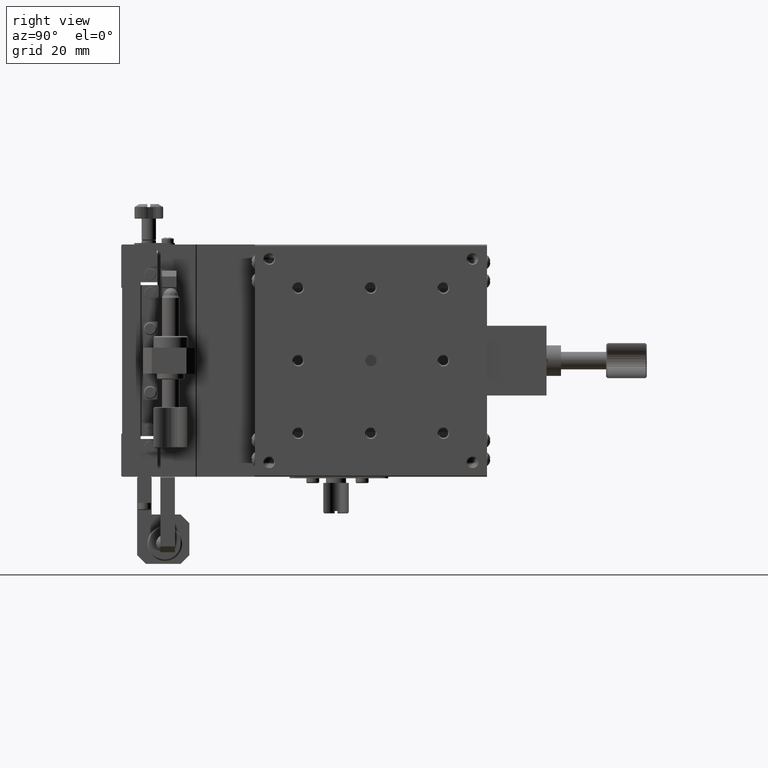
[diagram: clean part render]
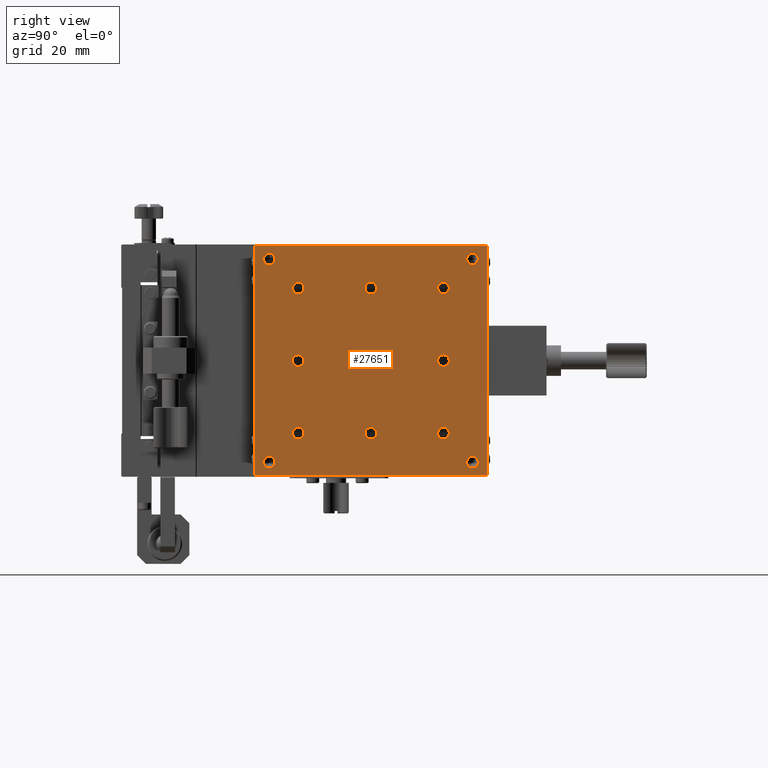
[diagram: same view with one face highlighted and labeled with its STEP entity id]
A machine part, right view. The second image highlights one B-rep face of the part: STEP entity #27651.
In plain terms, the highlighted planar face has unit normal (-1, 0, 0).
Its self-contained STEP definition (entity closure, byte-faithful):
#225 = EDGE_LOOP ( 'NONE', ( #36025 ) ) ;
#1324 = CIRCLE ( 'NONE', #62525, 2.000000000009549694 ) ;
#2165 = CIRCLE ( 'NONE', #71014, 2.000000000009549694 ) ;
#2223 = AXIS2_PLACEMENT_3D ( 'NONE', #49641, #72433, #42084 ) ;
#2775 = DIRECTION ( 'NONE',  ( 1.000000000000000000, 0.000000000000000000, 0.000000000000000000 ) ) ;
#3126 = CARTESIAN_POINT ( 'NONE',  ( 19.99999999984765964, 85.00000000000000000, -40.00000000000000000 ) ) ;
#3261 = VERTEX_POINT ( 'NONE', #27636 ) ;
#3283 = VECTOR ( 'NONE', #54221, 1000.000000000000000 ) ;
#4840 = DIRECTION ( 'NONE',  ( 1.000000000000000000, 0.000000000000000000, 0.000000000000000000 ) ) ;
#5115 = VERTEX_POINT ( 'NONE', #29509 ) ;
#5540 = ORIENTED_EDGE ( 'NONE', *, *, #47074, .F. ) ;
#5664 = CARTESIAN_POINT ( 'NONE',  ( 20.00000000000000000, 100.0000000000000000, -0.4099999999999999756 ) ) ;
#5691 = ORIENTED_EDGE ( 'NONE', *, *, #10397, .F. ) ;
#6114 = FACE_BOUND ( 'NONE', #28402, .T. ) ;
#7044 = EDGE_LOOP ( 'NONE', ( #56165 ) ) ;
#7544 = EDGE_CURVE ( 'NONE', #61989, #61989, #67345, .T. ) ;
#7574 = CARTESIAN_POINT ( 'NONE',  ( 19.99999999984765964, 85.00000000000000000, -41.99999999995270628 ) ) ;
#7583 = LINE ( 'NONE', #50333, #18460 ) ;
#7646 = EDGE_LOOP ( 'NONE', ( #11652 ) ) ;
#7855 = DIRECTION ( 'NONE',  ( 0.000000000000000000, 0.000000000000000000, -1.000000000000000000 ) ) ;
#8011 = EDGE_LOOP ( 'NONE', ( #75599 ) ) ;
#8016 = ORIENTED_EDGE ( 'NONE', *, *, #57070, .F. ) ;
#9110 = DIRECTION ( 'NONE',  ( 1.000000000000000000, 0.000000000000000000, 0.000000000000000000 ) ) ;
#9568 = CARTESIAN_POINT ( 'NONE',  ( 19.99999999998408740, 35.00000000000000000, -65.00000000000000000 ) ) ;
#10041 = VERTEX_POINT ( 'NONE', #65528 ) ;
#10207 = AXIS2_PLACEMENT_3D ( 'NONE', #60944, #24213, #66135 ) ;
#10397 = EDGE_CURVE ( 'NONE', #15645, #15645, #44657, .T. ) ;
#10709 = EDGE_CURVE ( 'NONE', #3261, #3261, #1324, .T. ) ;
#11470 = ORIENTED_EDGE ( 'NONE', *, *, #16513, .F. ) ;
#11652 = ORIENTED_EDGE ( 'NONE', *, *, #43027, .F. ) ;
#12012 = VERTEX_POINT ( 'NONE', #60722 ) ;
#12080 = EDGE_LOOP ( 'NONE', ( #17964 ) ) ;
#12127 = FACE_BOUND ( 'NONE', #62692, .T. ) ;
#12509 = FACE_BOUND ( 'NONE', #7044, .T. ) ;
#12940 = CIRCLE ( 'NONE', #57581, 2.000000000009549694 ) ;
#13631 = EDGE_LOOP ( 'NONE', ( #5691 ) ) ;
#15560 = CARTESIAN_POINT ( 'NONE',  ( 20.00000000005229595, 35.00000000000000000, -15.00000000000000000 ) ) ;
#15645 = VERTEX_POINT ( 'NONE', #38832 ) ;
#16484 = DIRECTION ( 'NONE',  ( 1.000000000000000000, 0.000000000000000000, 0.000000000000000000 ) ) ;
#16513 = EDGE_CURVE ( 'NONE', #43407, #26992, #7583, .T. ) ;
#17002 = CARTESIAN_POINT ( 'NONE',  ( 20.00000000000000000, 100.0000000000000000, -79.59000000000000341 ) ) ;
#17314 = CIRCLE ( 'NONE', #70899, 2.000000000000001776 ) ;
#17537 = EDGE_LOOP ( 'NONE', ( #63103 ) ) ;
#17949 = ORIENTED_EDGE ( 'NONE', *, *, #18343, .F. ) ;
#17964 = ORIENTED_EDGE ( 'NONE', *, *, #54553, .F. ) ;
#18111 = FACE_BOUND ( 'NONE', #225, .T. ) ;
#18343 = EDGE_CURVE ( 'NONE', #10041, #10041, #17314, .T. ) ;
#18460 = VECTOR ( 'NONE', #74692, 1000.000000000000000 ) ;
#19476 = CARTESIAN_POINT ( 'NONE',  ( 19.99999999999317524, 95.00000000000000000, -75.00000000000000000 ) ) ;
#20545 = CIRCLE ( 'NONE', #40955, 1.999999999952706276 ) ;
#21122 = DIRECTION ( 'NONE',  ( 0.000000000000000000, 0.000000000000000000, -1.000000000000000000 ) ) ;
#22299 = AXIS2_PLACEMENT_3D ( 'NONE', #19476, #31470, #37866 ) ;
#22302 = DIRECTION ( 'NONE',  ( 0.000000000000000000, 0.000000000000000000, -1.000000000000000000 ) ) ;
#24213 = DIRECTION ( 'NONE',  ( 1.000000000000000000, 0.000000000000000000, 0.000000000000000000 ) ) ;
#24632 = VECTOR ( 'NONE', #56500, 1000.000000000000000 ) ;
#24880 = CARTESIAN_POINT ( 'NONE',  ( 20.00000000005229595, 35.00000000000000000, -17.00000000006639311 ) ) ;
#24897 = FACE_BOUND ( 'NONE', #17537, .T. ) ;
#25289 = PLANE ( 'NONE',  #2223 ) ;
#25425 = AXIS2_PLACEMENT_3D ( 'NONE', #54630, #73772, #7855 ) ;
#25530 = EDGE_CURVE ( 'NONE', #12012, #12012, #77752, .T. ) ;
#25572 = CARTESIAN_POINT ( 'NONE',  ( 19.99999999998408740, 35.00000000000000000, -67.00000000000954969 ) ) ;
#26888 = EDGE_CURVE ( 'NONE', #30783, #30783, #2165, .T. ) ;
#26992 = VERTEX_POINT ( 'NONE', #64668 ) ;
#27279 = ORIENTED_EDGE ( 'NONE', *, *, #25530, .F. ) ;
#27400 = ORIENTED_EDGE ( 'NONE', *, *, #10709, .F. ) ;
#27636 = CARTESIAN_POINT ( 'NONE',  ( 19.99999999998408740, 60.00000000000000000, -67.00000000000954969 ) ) ;
#27651 = ADVANCED_FACE ( 'NONE', ( #6114, #36884, #48456, #67212, #12127, #72820, #73211, #61613, #12509, #48075, #18111, #62008, #24897, #43665 ), #25289, .F. ) ;
#27701 = CARTESIAN_POINT ( 'NONE',  ( 19.99999999998408740, 85.00000000000000000, -65.00000000000000000 ) ) ;
#28402 = EDGE_LOOP ( 'NONE', ( #17949 ) ) ;
#29509 = CARTESIAN_POINT ( 'NONE',  ( 19.99999999999317524, 95.00000000000000000, -77.00000000000954969 ) ) ;
#30783 = VERTEX_POINT ( 'NONE', #25572 ) ;
#31470 = DIRECTION ( 'NONE',  ( 1.000000000000000000, 0.000000000000000000, 0.000000000000000000 ) ) ;
#31967 = CARTESIAN_POINT ( 'NONE',  ( 19.99999999986812327, 25.00000000000000000, -7.000000000005002221 ) ) ;
#32763 = CARTESIAN_POINT ( 'NONE',  ( 20.00000000000000000, 60.00000000000000000, -40.00000000000000000 ) ) ;
#32822 = CARTESIAN_POINT ( 'NONE',  ( 20.00000000000000000, 100.0000000000000000, -0.4099999999999997535 ) ) ;
#32903 = EDGE_CURVE ( 'NONE', #37569, #37569, #39805, .T. ) ;
#32979 = DIRECTION ( 'NONE',  ( 0.000000000000000000, 0.000000000000000000, -1.000000000000000000 ) ) ;
#33162 = AXIS2_PLACEMENT_3D ( 'NONE', #36397, #4840, #73100 ) ;
#33541 = EDGE_CURVE ( 'NONE', #55130, #55130, #20545, .T. ) ;
#33646 = EDGE_CURVE ( 'NONE', #66699, #66699, #52402, .T. ) ;
#33858 = EDGE_LOOP ( 'NONE', ( #5540 ) ) ;
#34879 = DIRECTION ( 'NONE',  ( 0.000000000000000000, 0.000000000000000000, -1.000000000000000000 ) ) ;
#34888 = DIRECTION ( 'NONE',  ( 1.000000000000000000, 0.000000000000000000, 0.000000000000000000 ) ) ;
#36025 = ORIENTED_EDGE ( 'NONE', *, *, #32903, .F. ) ;
#36397 = CARTESIAN_POINT ( 'NONE',  ( 19.99999999987268140, 95.00000000000000000, -5.000000000000009770 ) ) ;
#36884 = FACE_BOUND ( 'NONE', #33858, .T. ) ;
#37019 = ORIENTED_EDGE ( 'NONE', *, *, #51890, .F. ) ;
#37569 = VERTEX_POINT ( 'NONE', #50324 ) ;
#37866 = DIRECTION ( 'NONE',  ( 0.000000000000000000, 0.000000000000000000, -1.000000000000000000 ) ) ;
#37970 = DIRECTION ( 'NONE',  ( 1.000000000000000000, 0.000000000000000000, 0.000000000000000000 ) ) ;
#38832 = CARTESIAN_POINT ( 'NONE',  ( 19.99999999984765964, 35.00000000000000000, -41.99999999995270628 ) ) ;
#39805 = CIRCLE ( 'NONE', #50008, 2.000000000009549694 ) ;
#39909 = VERTEX_POINT ( 'NONE', #64246 ) ;
#40148 = CARTESIAN_POINT ( 'NONE',  ( 19.99999999998408740, 60.00000000000000000, -65.00000000000000000 ) ) ;
#40242 = CARTESIAN_POINT ( 'NONE',  ( 19.99999999999317524, 25.00000000000000000, -75.00000000000000000 ) ) ;
#40955 = AXIS2_PLACEMENT_3D ( 'NONE', #3126, #9110, #21122 ) ;
#42084 = DIRECTION ( 'NONE',  ( 0.000000000000000000, 0.000000000000000000, 1.000000000000000000 ) ) ;
#42355 = VECTOR ( 'NONE', #60374, 1000.000000000000000 ) ;
#43027 = EDGE_CURVE ( 'NONE', #39909, #39909, #47073, .T. ) ;
#43143 = AXIS2_PLACEMENT_3D ( 'NONE', #15560, #2775, #52290 ) ;
#43407 = VERTEX_POINT ( 'NONE', #17002 ) ;
#43665 = FACE_OUTER_BOUND ( 'NONE', #66282, .T. ) ;
#44657 = CIRCLE ( 'NONE', #10207, 1.999999999952706276 ) ;
#45744 = EDGE_LOOP ( 'NONE', ( #48893 ) ) ;
#46680 = CARTESIAN_POINT ( 'NONE',  ( 19.99999999999317524, 25.00000000000000000, -77.00000000000954969 ) ) ;
#46953 = ORIENTED_EDGE ( 'NONE', *, *, #48515, .F. ) ;
#47073 = CIRCLE ( 'NONE', #25425, 2.000000000066393113 ) ;
#47074 = EDGE_CURVE ( 'NONE', #53077, #53077, #12940, .T. ) ;
#48075 = FACE_BOUND ( 'NONE', #73993, .T. ) ;
#48456 = FACE_BOUND ( 'NONE', #7646, .T. ) ;
#48515 = EDGE_CURVE ( 'NONE', #26992, #53486, #62087, .T. ) ;
#48893 = ORIENTED_EDGE ( 'NONE', *, *, #33541, .F. ) ;
#49003 = LINE ( 'NONE', #73758, #3283 ) ;
#49641 = CARTESIAN_POINT ( 'NONE',  ( 20.00000000000000000, 100.0000000000000000, -0.4099999999999999756 ) ) ;
#50008 = AXIS2_PLACEMENT_3D ( 'NONE', #27701, #16484, #34879 ) ;
#50324 = CARTESIAN_POINT ( 'NONE',  ( 19.99999999998408740, 85.00000000000000000, -67.00000000000954969 ) ) ;
#50333 = CARTESIAN_POINT ( 'NONE',  ( 20.00000000000000000, 100.0000000000000000, -79.59000000000000341 ) ) ;
#50724 = DIRECTION ( 'NONE',  ( 0.000000000000000000, 0.000000000000000000, -1.000000000000000000 ) ) ;
#51587 = CIRCLE ( 'NONE', #22299, 2.000000000009549694 ) ;
#51731 = DIRECTION ( 'NONE',  ( 1.000000000000000000, 0.000000000000000000, 0.000000000000000000 ) ) ;
#51890 = EDGE_CURVE ( 'NONE', #5115, #5115, #51587, .T. ) ;
#51990 = CIRCLE ( 'NONE', #74910, 2.000000000066393113 ) ;
#52290 = DIRECTION ( 'NONE',  ( 0.000000000000000000, 0.000000000000000000, -1.000000000000000000 ) ) ;
#52333 = ORIENTED_EDGE ( 'NONE', *, *, #61033, .F. ) ;
#52402 = CIRCLE ( 'NONE', #68977, 2.000000000005002221 ) ;
#52645 = CARTESIAN_POINT ( 'NONE',  ( 19.99999999986812327, 25.00000000000000000, -5.000000000000000000 ) ) ;
#53077 = VERTEX_POINT ( 'NONE', #46680 ) ;
#53486 = VERTEX_POINT ( 'NONE', #67160 ) ;
#54221 = DIRECTION ( 'NONE',  ( 0.000000000000000000, 1.000000000000000000, -0.000000000000000000 ) ) ;
#54553 = EDGE_CURVE ( 'NONE', #67394, #67394, #51990, .T. ) ;
#54630 = CARTESIAN_POINT ( 'NONE',  ( 20.00000000005229595, 60.00000000000000000, -15.00000000000000000 ) ) ;
#55130 = VERTEX_POINT ( 'NONE', #7574 ) ;
#56165 = ORIENTED_EDGE ( 'NONE', *, *, #26888, .F. ) ;
#56500 = DIRECTION ( 'NONE',  ( 0.000000000000000000, 0.000000000000000000, 1.000000000000000000 ) ) ;
#56550 = EDGE_LOOP ( 'NONE', ( #27279 ) ) ;
#57070 = EDGE_CURVE ( 'NONE', #58591, #43407, #65970, .T. ) ;
#57581 = AXIS2_PLACEMENT_3D ( 'NONE', #40242, #71742, #71353 ) ;
#57885 = DIRECTION ( 'NONE',  ( 0.000000000000000000, 0.000000000000000000, -1.000000000000000000 ) ) ;
#58591 = VERTEX_POINT ( 'NONE', #32822 ) ;
#59216 = DIRECTION ( 'NONE',  ( 0.000000000000000000, 0.000000000000000000, -1.000000000000000000 ) ) ;
#60374 = DIRECTION ( 'NONE',  ( -0.000000000000000000, -0.000000000000000000, -1.000000000000000000 ) ) ;
#60722 = CARTESIAN_POINT ( 'NONE',  ( 19.99999999987268140, 95.00000000000000000, -7.000000000009559464 ) ) ;
#60944 = CARTESIAN_POINT ( 'NONE',  ( 19.99999999984765964, 35.00000000000000000, -40.00000000000000000 ) ) ;
#61033 = EDGE_CURVE ( 'NONE', #53486, #58591, #49003, .T. ) ;
#61613 = FACE_BOUND ( 'NONE', #13631, .T. ) ;
#61692 = CARTESIAN_POINT ( 'NONE',  ( 20.00000000000000000, 20.00000000000000355, -0.4099999999999999756 ) ) ;
#61989 = VERTEX_POINT ( 'NONE', #24880 ) ;
#62008 = FACE_BOUND ( 'NONE', #45744, .T. ) ;
#62087 = LINE ( 'NONE', #61692, #24632 ) ;
#62525 = AXIS2_PLACEMENT_3D ( 'NONE', #40148, #51731, #32979 ) ;
#62692 = EDGE_LOOP ( 'NONE', ( #37019 ) ) ;
#63103 = ORIENTED_EDGE ( 'NONE', *, *, #33646, .F. ) ;
#64246 = CARTESIAN_POINT ( 'NONE',  ( 20.00000000005229595, 60.00000000000000000, -17.00000000006639311 ) ) ;
#64668 = CARTESIAN_POINT ( 'NONE',  ( 20.00000000000000000, 20.00000000000000355, -79.59000000000000341 ) ) ;
#65200 = CARTESIAN_POINT ( 'NONE',  ( 20.00000000005229595, 85.00000000000000000, -15.00000000000000000 ) ) ;
#65528 = CARTESIAN_POINT ( 'NONE',  ( 20.00000000000000000, 60.00000000000000000, -42.00000000000000000 ) ) ;
#65970 = LINE ( 'NONE', #5664, #42355 ) ;
#66135 = DIRECTION ( 'NONE',  ( 0.000000000000000000, 0.000000000000000000, -1.000000000000000000 ) ) ;
#66282 = EDGE_LOOP ( 'NONE', ( #8016, #52333, #46953, #11470 ) ) ;
#66699 = VERTEX_POINT ( 'NONE', #31967 ) ;
#67160 = CARTESIAN_POINT ( 'NONE',  ( 20.00000000000000000, 20.00000000000000355, -0.4099999999999996425 ) ) ;
#67212 = FACE_BOUND ( 'NONE', #12080, .T. ) ;
#67345 = CIRCLE ( 'NONE', #43143, 2.000000000066393113 ) ;
#67394 = VERTEX_POINT ( 'NONE', #78958 ) ;
#68977 = AXIS2_PLACEMENT_3D ( 'NONE', #52645, #76986, #22302 ) ;
#70899 = AXIS2_PLACEMENT_3D ( 'NONE', #32763, #37970, #50724 ) ;
#71014 = AXIS2_PLACEMENT_3D ( 'NONE', #9568, #71435, #57885 ) ;
#71353 = DIRECTION ( 'NONE',  ( 0.000000000000000000, 0.000000000000000000, -1.000000000000000000 ) ) ;
#71435 = DIRECTION ( 'NONE',  ( 1.000000000000000000, 0.000000000000000000, 0.000000000000000000 ) ) ;
#71742 = DIRECTION ( 'NONE',  ( 1.000000000000000000, 0.000000000000000000, 0.000000000000000000 ) ) ;
#72433 = DIRECTION ( 'NONE',  ( -1.000000000000000000, 0.000000000000000000, 0.000000000000000000 ) ) ;
#72820 = FACE_BOUND ( 'NONE', #56550, .T. ) ;
#73100 = DIRECTION ( 'NONE',  ( 0.000000000000000000, 0.000000000000000000, -1.000000000000000000 ) ) ;
#73211 = FACE_BOUND ( 'NONE', #8011, .T. ) ;
#73758 = CARTESIAN_POINT ( 'NONE',  ( 20.00000000000000000, 100.0000000000000000, -0.4099999999999997535 ) ) ;
#73772 = DIRECTION ( 'NONE',  ( 1.000000000000000000, 0.000000000000000000, 0.000000000000000000 ) ) ;
#73993 = EDGE_LOOP ( 'NONE', ( #27400 ) ) ;
#74692 = DIRECTION ( 'NONE',  ( -0.000000000000000000, -1.000000000000000000, 0.000000000000000000 ) ) ;
#74910 = AXIS2_PLACEMENT_3D ( 'NONE', #65200, #34888, #59216 ) ;
#75599 = ORIENTED_EDGE ( 'NONE', *, *, #7544, .F. ) ;
#76986 = DIRECTION ( 'NONE',  ( 1.000000000000000000, 0.000000000000000000, 0.000000000000000000 ) ) ;
#77752 = CIRCLE ( 'NONE', #33162, 2.000000000009549694 ) ;
#78958 = CARTESIAN_POINT ( 'NONE',  ( 20.00000000005229595, 85.00000000000000000, -17.00000000006639311 ) ) ;